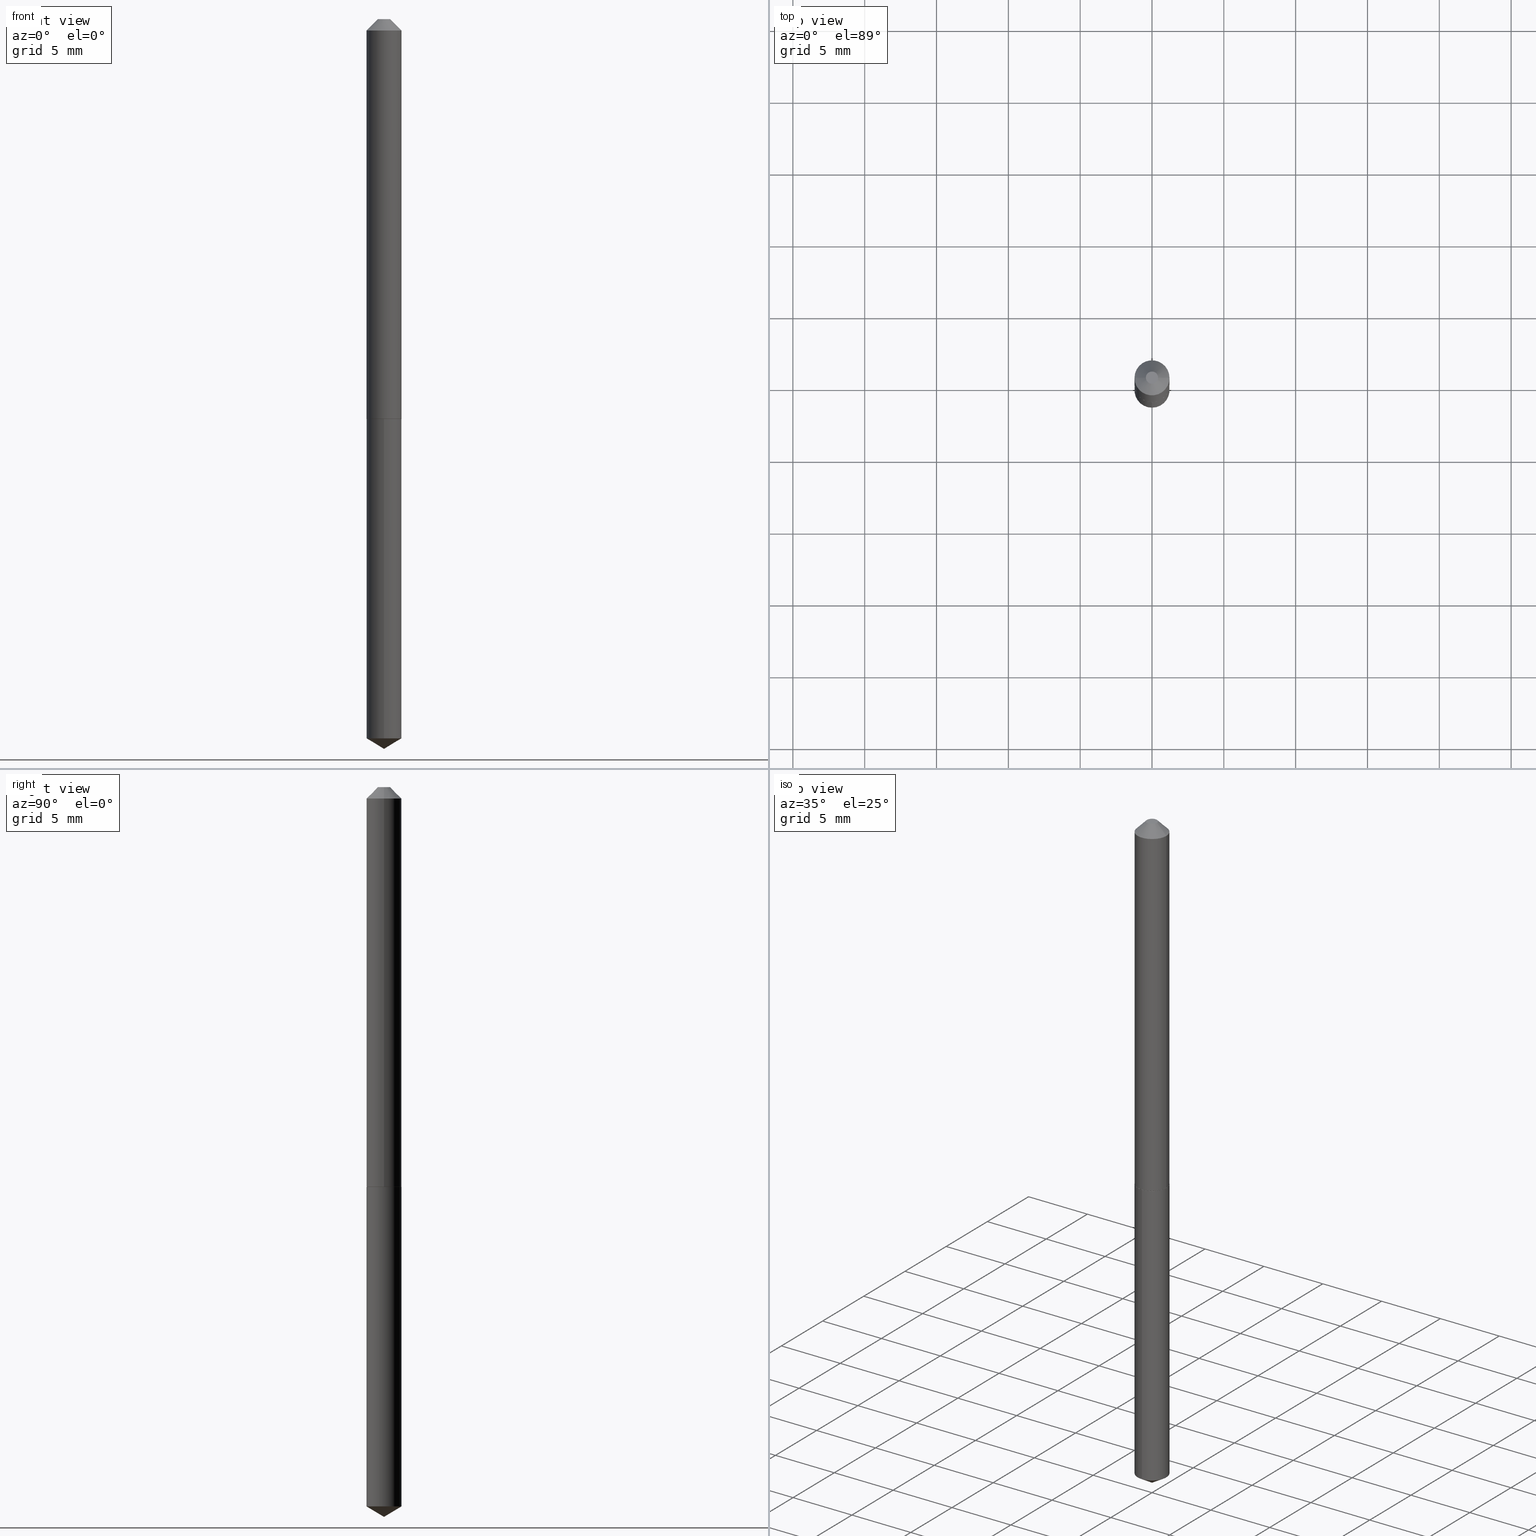
[diagram: canonical four-view strip — front | top / right | iso, engineering-drawing reading convention]
A machine part, canonical four-view strip (front | top / right | iso — engineering-drawing reading convention). The complete STEP part file that produces these views, byte-faithful:
ISO-10303-21;
HEADER;
FILE_DESCRIPTION (( 'STEP AP203' ),
    '1' );
FILE_NAME ('57121.STEP',
    '2024-04-22T22:29:08',
    ( '' ),
    ( '' ),
    'SwSTEP 2.0',
    'SolidWorks 2023',
    '' );
FILE_SCHEMA (( 'CONFIG_CONTROL_DESIGN' ));
ENDSEC;

DATA;
#1 = VERTEX_POINT ( 'NONE', #221 ) ;
#2 = CC_DESIGN_PERSON_AND_ORGANIZATION_ASSIGNMENT ( #284, #78, ( #143 ) ) ;
#3 = FACE_OUTER_BOUND ( 'NONE', #283, .T. ) ;
#4 = CARTESIAN_POINT ( 'NONE',  ( 3.410605131648961675E-16, 0.04799999999999310374, -1.971158690286678006 ) ) ;
#5 = ORIENTED_EDGE ( 'NONE', *, *, #293, .T. ) ;
#6 = CIRCLE ( 'NONE', #374, 0.04800000000000000100 ) ;
#7 = VERTEX_POINT ( 'NONE', #349 ) ;
#8 = DIRECTION ( 'NONE',  ( -2.445468806185136597E-29, 3.491481338843145583E-15, 1.000000000000000000 ) ) ;
#9 = ORIENTED_EDGE ( 'NONE', *, *, #87, .T. ) ;
#10 = DIRECTION ( 'NONE',  ( -2.445468806185136877E-29, 3.491481338843145188E-15, 1.000000000000000000 ) ) ;
#11 = ORGANIZATION ( 'UNSPECIFIED', 'UNSPECIFIED', '' ) ;
#12 = CALENDAR_DATE ( 2024, 22, 4 ) ;
#13 = SECURITY_CLASSIFICATION_LEVEL ( 'unclassified' ) ;
#14 = CC_DESIGN_PERSON_AND_ORGANIZATION_ASSIGNMENT ( #289, #72, ( #156 ) ) ;
#15 = VECTOR ( 'NONE', #197, 39.37007874015748143 ) ;
#16 = ORIENTED_EDGE ( 'NONE', *, *, #320, .F. ) ;
#17 = CC_DESIGN_PERSON_AND_ORGANIZATION_ASSIGNMENT ( #39, #288, ( #316 ) ) ;
#18 = ORIENTED_EDGE ( 'NONE', *, *, #344, .T. ) ;
#19 = FACE_OUTER_BOUND ( 'NONE', #121, .T. ) ;
#20 = DIRECTION ( 'NONE',  ( -2.445468806185136597E-29, 3.491481338843145583E-15, 1.000000000000000000 ) ) ;
#21 = DIRECTION ( 'NONE',  ( 1.000000000000000000, -6.982962677686265922E-15, 4.876176775795935793E-29 ) ) ;
#22 = ORIENTED_EDGE ( 'NONE', *, *, #205, .F. ) ;
#23 = ADVANCED_BREP_SHAPE_REPRESENTATION ( '57121', ( #80, #71, #234 ), #351 ) ;
#24 = CARTESIAN_POINT ( 'NONE',  ( 7.642090019328601786E-31, -1.091087918388490144E-16, -0.03125000000000020123 ) ) ;
#25 = ADVANCED_FACE ( 'NONE', ( #189 ), #209, .T. ) ;
#26 = CARTESIAN_POINT ( 'NONE',  ( 2.680233811578909638E-29, -3.826663547372087284E-15, -1.096000000000000085 ) ) ;
#27 = ORIENTED_EDGE ( 'NONE', *, *, #276, .T. ) ;
#28 = LINE ( 'NONE', #207, #165 ) ;
#29 = PRODUCT ( '57121', '57121', '', ( #258 ) ) ;
#30 = DIRECTION ( 'NONE',  ( -5.985567269335975989E-15, -0.8571673007021152202, 0.5150380749100490485 ) ) ;
#31 = VERTEX_POINT ( 'NONE', #98 ) ;
#32 = CONICAL_SURFACE ( 'NONE', #33, 0.04800000000000013284, 0.7853981633975080090 ) ;
#33 = AXIS2_PLACEMENT_3D ( 'NONE', #206, #201, #377 ) ;
#34 = EDGE_LOOP ( 'NONE', ( #249, #305 ) ) ;
#35 = DATE_AND_TIME ( #371, #171 ) ;
#36 = VERTEX_POINT ( 'NONE', #160 ) ;
#37 = VECTOR ( 'NONE', #10, 39.37007874015748143 ) ;
#38 = CIRCLE ( 'NONE', #211, 0.04800000000000013284 ) ;
#39 = PERSON_AND_ORGANIZATION ( #100, #11 ) ;
#40 = CC_DESIGN_PERSON_AND_ORGANIZATION_ASSIGNMENT ( #42, #343, ( #29 ) ) ;
#41 = APPROVAL_STATUS ( 'not_yet_approved' ) ;
#42 = PERSON_AND_ORGANIZATION ( #100, #11 ) ;
#43 = ORIENTED_EDGE ( 'NONE', *, *, #320, .T. ) ;
#44 = AXIS2_PLACEMENT_3D ( 'NONE', #173, #355, #353 ) ;
#45 = ORIENTED_EDGE ( 'NONE', *, *, #60, .F. ) ;
#46 = CARTESIAN_POINT ( 'NONE',  ( -0.04800000000000013284, -3.483857293537816599E-15, -1.095499999999999918 ) ) ;
#47 = APPROVAL ( #345, 'UNSPECIFIED' ) ;
#48 = DIRECTION ( 'NONE',  ( -2.445468806185136597E-29, 3.491481338843145583E-15, 1.000000000000000000 ) ) ;
#49 = DIRECTION ( 'NONE',  ( -1.000000000000000000, 6.982962677686265922E-15, -4.876176775795935793E-29 ) ) ;
#50 = CIRCLE ( 'NONE', #240, 0.04800000000000000100 ) ;
#51 = AXIS2_PLACEMENT_3D ( 'NONE', #273, #186, #245 ) ;
#52 = VERTEX_POINT ( 'NONE', #335 ) ;
#53 = EDGE_CURVE ( 'NONE', #357, #7, #161, .T. ) ;
#54 = FACE_OUTER_BOUND ( 'NONE', #313, .T. ) ;
#55 = VERTEX_POINT ( 'NONE', #130 ) ;
#56 = LINE ( 'NONE', #46, #142 ) ;
#57 = DIRECTION ( 'NONE',  ( 0.7071067811865897612, -2.468850131082699217E-15, 0.7071067811865052732 ) ) ;
#58 = AXIS2_PLACEMENT_3D ( 'NONE', #250, #181, #183 ) ;
#59 = DIRECTION ( 'NONE',  ( 6.982962677686265922E-15, 1.000000000000000000, -3.491494047070310150E-15 ) ) ;
#60 = EDGE_CURVE ( 'NONE', #36, #1, #64, .T. ) ;
#61 = ORIENTED_EDGE ( 'NONE', *, *, #364, .F. ) ;
#62 = ORIENTED_EDGE ( 'NONE', *, *, #381, .T. ) ;
#63 = LINE ( 'NONE', #188, #82 ) ;
#64 = CIRCLE ( 'NONE', #267, 0.01674999999999999753 ) ;
#65 = ORIENTED_EDGE ( 'NONE', *, *, #364, .T. ) ;
#66 = AXIS2_PLACEMENT_3D ( 'NONE', #341, #148, #275 ) ;
#67 = LOCAL_TIME ( 18, 29, 8.000000000000000000, #135 ) ;
#68 = VERTEX_POINT ( 'NONE', #337 ) ;
#69 = COORDINATED_UNIVERSAL_TIME_OFFSET ( 5, 0, .BEHIND. ) ;
#70 = CLOSED_SHELL ( 'NONE', ( #388, #332, #145, #280, #354 ) ) ;
#71 = MANIFOLD_SOLID_BREP ( 'Body-Move/Copy2[2]', #180 ) ;
#72 = PERSON_AND_ORGANIZATION_ROLE ( 'creator' ) ;
#73 = CC_DESIGN_APPROVAL ( #198, ( #143 ) ) ;
#74 = EDGE_CURVE ( 'NONE', #1, #36, #95, .T. ) ;
#75 = APPROVAL_DATE_TIME ( #194, #195 ) ;
#76 = CARTESIAN_POINT ( 'NONE',  ( -3.294319100500249055E-48, 4.703414590486657037E-34, 1.347111479062084438E-19 ) ) ;
#77 = DIMENSIONAL_EXPONENTS ( 1.000000000000000000, 0.000000000000000000, 0.000000000000000000, 0.000000000000000000, 0.000000000000000000, 0.000000000000000000, 0.000000000000000000 ) ;
#78 = PERSON_AND_ORGANIZATION_ROLE ( 'classification_officer' ) ;
#79 = CARTESIAN_POINT ( 'NONE',  ( 7.642090019328601786E-31, -1.091087918388490144E-16, -0.03125000000000020123 ) ) ;
#80 = MANIFOLD_SOLID_BREP ( 'Body-Move/Copy2[1]', #70 ) ;
#81 = CONICAL_SURFACE ( 'NONE', #176, 0.04800000000000000794, 0.7853981633974452814 ) ;
#82 = VECTOR ( 'NONE', #30, 39.37007874015748854 ) ;
#83 = CARTESIAN_POINT ( 'NONE',  ( 2.679011077175817397E-29, -3.824917806702665780E-15, -1.095499999999999918 ) ) ;
#84 = UNCERTAINTY_MEASURE_WITH_UNIT (LENGTH_MEASURE( 1.000000000000000082E-05 ), #213, 'distance_accuracy_value', 'NONE');
#85 = DIRECTION ( 'NONE',  ( 2.445468806185136597E-29, -3.491481338843145583E-15, -1.000000000000000000 ) ) ;
#86 = LINE ( 'NONE', #302, #369 ) ;
#87 = EDGE_CURVE ( 'NONE', #36, #333, #342, .T. ) ;
#88 = CARTESIAN_POINT ( 'NONE',  ( 0.000000000000000000, 0.000000000000000000, 0.000000000000000000 ) ) ;
#89 = ORIENTED_EDGE ( 'NONE', *, *, #115, .F. ) ;
#90 = DIRECTION ( 'NONE',  ( 2.438088387897960049E-29, -3.491481338843145188E-15, -1.000000000000000000 ) ) ;
#91 = ORIENTED_EDGE ( 'NONE', *, *, #169, .F. ) ;
#92 = DIRECTION ( 'NONE',  ( -2.445468806185136877E-29, 3.491481338843145188E-15, 1.000000000000000000 ) ) ;
#93 = CARTESIAN_POINT ( 'NONE',  ( 2.680233811578909638E-29, -3.826663547372087284E-15, -1.096000000000000085 ) ) ;
#94 = EDGE_CURVE ( 'NONE', #360, #139, #131, .T. ) ;
#95 = CIRCLE ( 'NONE', #136, 0.01674999999999999753 ) ;
#96 = ORIENTED_EDGE ( 'NONE', *, *, #381, .F. ) ;
#97 = LENGTH_MEASURE_WITH_UNIT ( LENGTH_MEASURE( 0.02539999999999999897 ), #210 );
#98 = CARTESIAN_POINT ( 'NONE',  ( -0.04750000000000004219, -3.486506520711928195E-15, -1.096000000000000085 ) ) ;
#99 = CYLINDRICAL_SURFACE ( 'NONE', #66, 0.04800000000000000100 ) ;
#100 = PERSON ( 'UNSPECIFIED', 'UNSPECIFIED', 'UNSPECIFIED', ('UNSPECIFIED'), ('UNSPECIFIED'), ('UNSPECIFIED') ) ;
#101 = ORIENTED_EDGE ( 'NONE', *, *, #248, .T. ) ;
#102 = PLANE ( 'NONE',  #356 ) ;
#103 = DIRECTION ( 'NONE',  ( -1.000000000000000000, 6.982962677686266711E-15, 0.000000000000000000 ) ) ;
#104 = AXIS2_PLACEMENT_3D ( 'NONE', #88, #266, #113 ) ;
#105 = ORIENTED_EDGE ( 'NONE', *, *, #94, .T. ) ;
#106 = APPLICATION_PROTOCOL_DEFINITION ( 'international standard', 'config_control_design', 1994, #301 ) ;
#107 = EDGE_CURVE ( 'NONE', #360, #52, #50, .T. ) ;
#108 = APPROVAL_DATE_TIME ( #228, #198 ) ;
#109 = PERSON_AND_ORGANIZATION_ROLE ( 'creator' ) ;
#110 = ORIENTED_EDGE ( 'NONE', *, *, #276, .F. ) ;
#111 = CARTESIAN_POINT ( 'NONE',  ( 2.679011077175817397E-29, -3.824917806702665780E-15, -1.095499999999999918 ) ) ;
#112 = AXIS2_PLACEMENT_3D ( 'NONE', #120, #336, #244 ) ;
#113 = DIRECTION ( 'NONE',  ( 1.000000000000000000, -6.982962677686265922E-15, 4.876176775795935793E-29 ) ) ;
#114 = CARTESIAN_POINT ( 'NONE',  ( 3.410605131648963647E-16, 0.04799999999999617073, -1.096000000000000085 ) ) ;
#115 = EDGE_CURVE ( 'NONE', #7, #333, #118, .T. ) ;
#116 = FACE_OUTER_BOUND ( 'NONE', #34, .T. ) ;
#117 = ORIENTED_EDGE ( 'NONE', *, *, #94, .F. ) ;
#118 = CIRCLE ( 'NONE', #338, 0.04800000000000000794 ) ;
#119 = CARTESIAN_POINT ( 'NONE',  ( 0.04750000000000004219, -4.158354274562185584E-15, -1.096000000000000085 ) ) ;
#120 = CARTESIAN_POINT ( 'NONE',  ( 7.642090019328601786E-31, -1.091087918388490144E-16, -0.03125000000000020123 ) ) ;
#121 = EDGE_LOOP ( 'NONE', ( #125, #65, #89, #184 ) ) ;
#122 = DIRECTION ( 'NONE',  ( 1.000000000000000000, -6.982962677686265133E-15, 0.000000000000000000 ) ) ;
#123 = DIRECTION ( 'NONE',  ( -6.982962677686265922E-15, -1.000000000000000000, 2.845674993400273939E-15 ) ) ;
#124 = AXIS2_PLACEMENT_3D ( 'NONE', #236, #8, #128 ) ;
#125 = ORIENTED_EDGE ( 'NONE', *, *, #205, .T. ) ;
#126 = FACE_OUTER_BOUND ( 'NONE', #232, .T. ) ;
#127 = ORIENTED_EDGE ( 'NONE', *, *, #248, .F. ) ;
#128 = DIRECTION ( 'NONE',  ( 1.000000000000000000, -6.982962677686265133E-15, 0.000000000000000000 ) ) ;
#129 = PRODUCT_RELATED_PRODUCT_CATEGORY ( 'detail', '', ( #29 ) ) ;
#130 = CARTESIAN_POINT ( 'NONE',  ( 4.890919864155075049E-29, -6.982988094140620299E-15, -2.000000000000000000 ) ) ;
#131 = LINE ( 'NONE', #170, #175 ) ;
#132 = PRODUCT_DEFINITION_SHAPE ( 'NONE', 'NONE',  #156 ) ;
#133 = EDGE_CURVE ( 'NONE', #31, #187, #56, .T. ) ;
#134 = DATE_TIME_ROLE ( 'creation_date' ) ;
#135 = COORDINATED_UNIVERSAL_TIME_OFFSET ( 5, 0, .BEHIND. ) ;
#136 = AXIS2_PLACEMENT_3D ( 'NONE', #76, #282, #321 ) ;
#137 = CIRCLE ( 'NONE', #112, 0.04800000000000000794 ) ;
#138 = APPROVAL_ROLE ( '' ) ;
#139 = VERTEX_POINT ( 'NONE', #114 ) ;
#140 = DIRECTION ( 'NONE',  ( 0.7071067811865453523, -7.319954787623248157E-15, -0.7071067811865496822 ) ) ;
#141 = DIRECTION ( 'NONE',  ( -2.445459932077537805E-29, 3.491494047070310150E-15, 1.000000000000000000 ) ) ;
#142 = VECTOR ( 'NONE', #179, 39.37007874015748143 ) ;
#143 = SECURITY_CLASSIFICATION ( '', '', #13 ) ;
#144 = DIRECTION ( 'NONE',  ( -2.445468806185136597E-29, 3.491481338843145583E-15, 1.000000000000000000 ) ) ;
#145 = ADVANCED_FACE ( 'NONE', ( #237 ), #219, .T. ) ;
#146 = DIRECTION ( 'NONE',  ( -2.445468806185136597E-29, 3.491481338843145583E-15, 1.000000000000000000 ) ) ;
#147 = PLANE ( 'NONE',  #386 ) ;
#148 = DIRECTION ( 'NONE',  ( -2.445459932077537525E-29, 3.491494047070310150E-15, 1.000000000000000000 ) ) ;
#149 = VECTOR ( 'NONE', #92, 39.37007874015748143 ) ;
#150 = ADVANCED_FACE ( 'NONE', ( #178 ), #147, .F. ) ;
#151 = ORIENTED_EDGE ( 'NONE', *, *, #235, .F. ) ;
#152 = FACE_OUTER_BOUND ( 'NONE', #384, .T. ) ;
#153 = ORIENTED_EDGE ( 'NONE', *, *, #344, .F. ) ;
#154 = FACE_OUTER_BOUND ( 'NONE', #251, .T. ) ;
#155 = VERTEX_POINT ( 'NONE', #119 ) ;
#156 = PRODUCT_DEFINITION ( 'UNKNOWN', '', #316, #378 ) ;
#157 =( NAMED_UNIT ( * ) SI_UNIT ( $, .STERADIAN. ) SOLID_ANGLE_UNIT ( ) );
#158 = AXIS2_PLACEMENT_3D ( 'NONE', #79, #229, #103 ) ;
#159 = APPROVAL_PERSON_ORGANIZATION ( #225, #195, #138 ) ;
#160 = CARTESIAN_POINT ( 'NONE',  ( -0.01675000000000000100, 1.715190207706684202E-16, 1.347111479051999787E-19 ) ) ;
#161 = LINE ( 'NONE', #347, #37 ) ;
#162 = CALENDAR_DATE ( 2024, 22, 4 ) ;
#163 = EDGE_LOOP ( 'NONE', ( #330, #290, #256, #365 ) ) ;
#164 = COORDINATED_UNIVERSAL_TIME_OFFSET ( 5, 0, .BEHIND. ) ;
#165 = VECTOR ( 'NONE', #57, 39.37007874015748143 ) ;
#166 = ADVANCED_FACE ( 'NONE', ( #204 ), #81, .T. ) ;
#167 = DIRECTION ( 'NONE',  ( 1.000000000000000000, 0.000000000000000000, 0.000000000000000000 ) ) ;
#168 = CALENDAR_DATE ( 2024, 22, 4 ) ;
#169 = EDGE_CURVE ( 'NONE', #52, #68, #86, .T. ) ;
#170 = CARTESIAN_POINT ( 'NONE',  ( 3.410605131648748190E-16, 0.04799999999999617073, -1.096000000000000085 ) ) ;
#171 = LOCAL_TIME ( 18, 29, 8.000000000000000000, #373 ) ;
#172 = ORIENTED_EDGE ( 'NONE', *, *, #304, .T. ) ;
#173 = CARTESIAN_POINT ( 'NONE',  ( -9.138702049161582157E-28, 1.304774213880255776E-13, 37.37007874015748143 ) ) ;
#174 = DIRECTION ( 'NONE',  ( 1.000000000000000000, -6.982962677686266711E-15, 0.000000000000000000 ) ) ;
#175 = VECTOR ( 'NONE', #319, 39.37007874015748143 ) ;
#176 = AXIS2_PLACEMENT_3D ( 'NONE', #385, #85, #328 ) ;
#177 = LINE ( 'NONE', #294, #193 ) ;
#178 = FACE_OUTER_BOUND ( 'NONE', #253, .T. ) ;
#179 = DIRECTION ( 'NONE',  ( -0.7071067811865897612, 7.493145998870507199E-15, 0.7071067811865052732 ) ) ;
#180 = CLOSED_SHELL ( 'NONE', ( #166, #254, #214, #150, #226, #191, #25, #222 ) ) ;
#181 = DIRECTION ( 'NONE',  ( -2.445459932077537525E-29, 3.491494047070310150E-15, 1.000000000000000000 ) ) ;
#182 = CONICAL_SURFACE ( 'NONE', #291, 65.52281426576982426, 1.029744258676663859 ) ;
#183 = DIRECTION ( 'NONE',  ( -6.982962677686265922E-15, -1.000000000000000000, 2.845674993400273939E-15 ) ) ;
#184 = ORIENTED_EDGE ( 'NONE', *, *, #53, .F. ) ;
#185 = EDGE_CURVE ( 'NONE', #1, #7, #350, .T. ) ;
#186 = DIRECTION ( 'NONE',  ( -2.445459932077537525E-29, 3.491494047070310150E-15, 1.000000000000000000 ) ) ;
#187 = VERTEX_POINT ( 'NONE', #325 ) ;
#188 = CARTESIAN_POINT ( 'NONE',  ( 4.890919864155074489E-29, -6.982988094140620299E-15, -2.000000000000000000 ) ) ;
#189 = FACE_OUTER_BOUND ( 'NONE', #300, .T. ) ;
#190 = CARTESIAN_POINT ( 'NONE',  ( -0.04800000000000000794, 2.260734166900918612E-16, -0.03125000000000020123 ) ) ;
#191 = ADVANCED_FACE ( 'NONE', ( #54 ), #295, .T. ) ;
#192 = CALENDAR_DATE ( 2024, 22, 4 ) ;
#193 = VECTOR ( 'NONE', #383, 39.37007874015748143 ) ;
#194 = DATE_AND_TIME ( #168, #387 ) ;
#195 = APPROVAL ( #41, 'UNSPECIFIED' ) ;
#196 = SHAPE_DEFINITION_REPRESENTATION ( #132, #23 ) ;
#197 = DIRECTION ( 'NONE',  ( -0.7071067811865453523, 2.468850131082234184E-15, -0.7071067811865496822 ) ) ;
#198 = APPROVAL ( #286, 'UNSPECIFIED' ) ;
#199 = DIRECTION ( 'NONE',  ( -2.445468806185136597E-29, 3.491481338843145583E-15, 1.000000000000000000 ) ) ;
#200 = AXIS2_PLACEMENT_3D ( 'NONE', #93, #306, #122 ) ;
#201 = DIRECTION ( 'NONE',  ( -2.445468806185136597E-29, 3.491481338843145583E-15, 1.000000000000000000 ) ) ;
#202 = CARTESIAN_POINT ( 'NONE',  ( 0.000000000000000000, 0.000000000000000000, 0.000000000000000000 ) ) ;
#203 = FACE_OUTER_BOUND ( 'NONE', #274, .T. ) ;
#204 = FACE_OUTER_BOUND ( 'NONE', #163, .T. ) ;
#205 = EDGE_CURVE ( 'NONE', #357, #187, #38, .T. ) ;
#206 = CARTESIAN_POINT ( 'NONE',  ( 2.679011077175817397E-29, -3.824917806702665780E-15, -1.095499999999999918 ) ) ;
#207 = CARTESIAN_POINT ( 'NONE',  ( 0.04800000000000013284, -4.160100015231607087E-15, -1.095499999999999918 ) ) ;
#208 = EDGE_LOOP ( 'NONE', ( #127, #5, #263 ) ) ;
#209 = CONICAL_SURFACE ( 'NONE', #158, 0.04800000000000000794, 0.7853981633974452814 ) ;
#210 =( LENGTH_UNIT ( ) NAMED_UNIT ( * ) SI_UNIT ( $, .METRE. ) );
#211 = AXIS2_PLACEMENT_3D ( 'NONE', #299, #146, #269 ) ;
#212 = EDGE_LOOP ( 'NONE', ( #298, #376, #62, #151 ) ) ;
#213 =( CONVERSION_BASED_UNIT ( 'INCH', #97 ) LENGTH_UNIT ( ) NAMED_UNIT ( #77 ) );
#214 = ADVANCED_FACE ( 'NONE', ( #203 ), #362, .T. ) ;
#215 = ORIENTED_EDGE ( 'NONE', *, *, #107, .T. ) ;
#216 = CARTESIAN_POINT ( 'NONE',  ( -0.04800000000000000794, -1.625952786105907668E-15, -0.03125000000000020123 ) ) ;
#217 = DIRECTION ( 'NONE',  ( 1.000000000000000000, -6.982962677686266711E-15, 4.876219677916620331E-29 ) ) ;
#218 = CARTESIAN_POINT ( 'NONE',  ( 0.04800000000000013284, -4.160100015231607087E-15, -1.095499999999999918 ) ) ;
#219 = CONICAL_SURFACE ( 'NONE', #44, 65.52281426576982426, 1.029744258676663859 ) ;
#220 = VECTOR ( 'NONE', #140, 39.37007874015748143 ) ;
#221 = CARTESIAN_POINT ( 'NONE',  ( 0.01675000000000000100, -2.766630185972779012E-16, 1.347111479075840151E-19 ) ) ;
#222 = ADVANCED_FACE ( 'NONE', ( #116 ), #243, .F. ) ;
#223 = CARTESIAN_POINT ( 'NONE',  ( 0.000000000000000000, 0.000000000000000000, 0.000000000000000000 ) ) ;
#224 = APPROVAL_DATE_TIME ( #315, #47 ) ;
#225 = PERSON_AND_ORGANIZATION ( #100, #11 ) ;
#226 = ADVANCED_FACE ( 'NONE', ( #270 ), #32, .T. ) ;
#227 = CIRCLE ( 'NONE', #51, 0.04800000000000000100 ) ;
#228 = DATE_AND_TIME ( #162, #242 ) ;
#229 = DIRECTION ( 'NONE',  ( 2.445468806185136597E-29, -3.491481338843145583E-15, -1.000000000000000000 ) ) ;
#230 = CC_DESIGN_PERSON_AND_ORGANIZATION_ASSIGNMENT ( #317, #109, ( #316 ) ) ;
#231 = DATE_AND_TIME ( #12, #67 ) ;
#232 = EDGE_LOOP ( 'NONE', ( #172, #105, #16, #91 ) ) ;
#233 = DIRECTION ( 'NONE',  ( -2.445468806185136597E-29, 3.491481338843145583E-15, 1.000000000000000000 ) ) ;
#234 = AXIS2_PLACEMENT_3D ( 'NONE', #223, #318, #167 ) ;
#235 = EDGE_CURVE ( 'NONE', #187, #357, #247, .T. ) ;
#236 = CARTESIAN_POINT ( 'NONE',  ( 2.680233811578909638E-29, -3.826663547372087284E-15, -1.096000000000000085 ) ) ;
#237 = FACE_OUTER_BOUND ( 'NONE', #208, .T. ) ;
#238 = DIRECTION ( 'NONE',  ( -2.445459932077537525E-29, 3.491494047070310150E-15, 1.000000000000000000 ) ) ;
#239 = ORIENTED_EDGE ( 'NONE', *, *, #53, .T. ) ;
#240 = AXIS2_PLACEMENT_3D ( 'NONE', #382, #238, #329 ) ;
#241 = AXIS2_PLACEMENT_3D ( 'NONE', #202, #144, #21 ) ;
#242 = LOCAL_TIME ( 18, 29, 8.000000000000000000, #348 ) ;
#243 = PLANE ( 'NONE',  #261 ) ;
#244 = DIRECTION ( 'NONE',  ( 1.000000000000000000, -6.982962677686266711E-15, 0.000000000000000000 ) ) ;
#245 = DIRECTION ( 'NONE',  ( -6.982962677686265922E-15, -1.000000000000000000, 5.691349986800547879E-15 ) ) ;
#246 = CARTESIAN_POINT ( 'NONE',  ( 2.680233811578909638E-29, -3.826663547372087284E-15, -1.096000000000000085 ) ) ;
#247 = CIRCLE ( 'NONE', #296, 0.04800000000000013284 ) ;
#248 = EDGE_CURVE ( 'NONE', #55, #360, #177, .T. ) ;
#249 = ORIENTED_EDGE ( 'NONE', *, *, #60, .T. ) ;
#250 = CARTESIAN_POINT ( 'NONE',  ( 2.680233811578909638E-29, -3.826663547372087284E-15, -1.096000000000000085 ) ) ;
#251 = EDGE_LOOP ( 'NONE', ( #43, #27 ) ) ;
#252 = DIRECTION ( 'NONE',  ( -2.445459932077537525E-29, 3.491494047070310150E-15, 1.000000000000000000 ) ) ;
#253 = EDGE_LOOP ( 'NONE', ( #307, #370 ) ) ;
#254 = ADVANCED_FACE ( 'NONE', ( #19 ), #379, .T. ) ;
#255 = AXIS2_PLACEMENT_3D ( 'NONE', #83, #20, #324 ) ;
#256 = ORIENTED_EDGE ( 'NONE', *, *, #115, .T. ) ;
#257 = PERSON_AND_ORGANIZATION ( #100, #11 ) ;
#258 = MECHANICAL_CONTEXT ( 'NONE', #281, 'mechanical' ) ;
#259 = PERSON_AND_ORGANIZATION ( #100, #11 ) ;
#260 = CIRCLE ( 'NONE', #124, 0.04750000000000004219 ) ;
#261 = AXIS2_PLACEMENT_3D ( 'NONE', #358, #90, #49 ) ;
#262 = DATE_TIME_ROLE ( 'classification_date' ) ;
#263 = ORIENTED_EDGE ( 'NONE', *, *, #107, .F. ) ;
#264 = CARTESIAN_POINT ( 'NONE',  ( 2.680233811578909638E-29, -3.826663547372087284E-15, -1.096000000000000085 ) ) ;
#265 = EDGE_CURVE ( 'NONE', #31, #155, #260, .T. ) ;
#266 = DIRECTION ( 'NONE',  ( -2.445468806185136597E-29, 3.491481338843145583E-15, 1.000000000000000000 ) ) ;
#267 = AXIS2_PLACEMENT_3D ( 'NONE', #366, #199, #217 ) ;
#268 = CIRCLE ( 'NONE', #303, 0.04800000000000000100 ) ;
#269 = DIRECTION ( 'NONE',  ( 1.000000000000000000, -6.982962677686262766E-15, 0.000000000000000000 ) ) ;
#270 = FACE_OUTER_BOUND ( 'NONE', #212, .T. ) ;
#271 = CC_DESIGN_DATE_AND_TIME_ASSIGNMENT ( #35, #134, ( #156 ) ) ;
#272 = CARTESIAN_POINT ( 'NONE',  ( 0.04800000000000000794, -4.384126957318825829E-16, -0.03125000000000020123 ) ) ;
#273 = CARTESIAN_POINT ( 'NONE',  ( 4.820399322884435302E-29, -6.882274904749872337E-15, -1.971158690286677784 ) ) ;
#274 = EDGE_LOOP ( 'NONE', ( #314, #326, #22, #96 ) ) ;
#275 = DIRECTION ( 'NONE',  ( -6.982962677686265922E-15, -1.000000000000000000, 2.845674993400273939E-15 ) ) ;
#276 = EDGE_CURVE ( 'NONE', #139, #68, #6, .T. ) ;
#277 = DIRECTION ( 'NONE',  ( -6.982962677686265133E-15, -1.000000000000000000, 3.468864327941520456E-15 ) ) ;
#278 = ORIENTED_EDGE ( 'NONE', *, *, #293, .F. ) ;
#279 = DIRECTION ( 'NONE',  ( -6.982962677686265922E-15, -1.000000000000000000, 2.845674993400273939E-15 ) ) ;
#280 = ADVANCED_FACE ( 'NONE', ( #152 ), #99, .T. ) ;
#281 = APPLICATION_CONTEXT ( 'configuration controlled 3d designs of mechanical parts and assemblies' ) ;
#282 = DIRECTION ( 'NONE',  ( -2.445468806185136597E-29, 3.491481338843145583E-15, 1.000000000000000000 ) ) ;
#283 = EDGE_LOOP ( 'NONE', ( #278, #101, #368 ) ) ;
#284 = PERSON_AND_ORGANIZATION ( #100, #11 ) ;
#285 = CC_DESIGN_APPROVAL ( #47, ( #156 ) ) ;
#286 = APPROVAL_STATUS ( 'not_yet_approved' ) ;
#287 = EDGE_CURVE ( 'NONE', #155, #31, #322, .T. ) ;
#288 = PERSON_AND_ORGANIZATION_ROLE ( 'design_supplier' ) ;
#289 = PERSON_AND_ORGANIZATION ( #100, #11 ) ;
#290 = ORIENTED_EDGE ( 'NONE', *, *, #185, .T. ) ;
#291 = AXIS2_PLACEMENT_3D ( 'NONE', #310, #367, #277 ) ;
#292 = ORIENTED_EDGE ( 'NONE', *, *, #185, .F. ) ;
#293 = EDGE_CURVE ( 'NONE', #55, #52, #63, .T. ) ;
#294 = CARTESIAN_POINT ( 'NONE',  ( 4.890939486770395942E-29, -6.982960237706674981E-15, -2.000000000000000000 ) ) ;
#295 = CYLINDRICAL_SURFACE ( 'NONE', #241, 0.04800000000000007733 ) ;
#296 = AXIS2_PLACEMENT_3D ( 'NONE', #111, #48, #323 ) ;
#297 = DIRECTION ( 'NONE',  ( -2.438088387897960049E-29, 3.491481338843145188E-15, 1.000000000000000000 ) ) ;
#298 = ORIENTED_EDGE ( 'NONE', *, *, #133, .F. ) ;
#299 = CARTESIAN_POINT ( 'NONE',  ( 2.679011077175817397E-29, -3.824917806702665780E-15, -1.095499999999999918 ) ) ;
#300 = EDGE_LOOP ( 'NONE', ( #292, #45, #9, #18 ) ) ;
#301 = APPLICATION_CONTEXT ( 'configuration controlled 3d designs of mechanical parts and assemblies' ) ;
#302 = CARTESIAN_POINT ( 'NONE',  ( -3.351822085289139434E-16, -0.04800000000000382433, -1.095999999999999863 ) ) ;
#303 = AXIS2_PLACEMENT_3D ( 'NONE', #390, #308, #279 ) ;
#304 = EDGE_CURVE ( 'NONE', #52, #360, #227, .T. ) ;
#305 = ORIENTED_EDGE ( 'NONE', *, *, #74, .T. ) ;
#306 = DIRECTION ( 'NONE',  ( -2.445468806185136597E-29, 3.491481338843145583E-15, 1.000000000000000000 ) ) ;
#307 = ORIENTED_EDGE ( 'NONE', *, *, #287, .F. ) ;
#308 = DIRECTION ( 'NONE',  ( -2.445459932077537525E-29, 3.491494047070310150E-15, 1.000000000000000000 ) ) ;
#309 = ORIENTED_EDGE ( 'NONE', *, *, #235, .T. ) ;
#310 = CARTESIAN_POINT ( 'NONE',  ( -9.138702049161582157E-28, 1.304774213880255776E-13, 37.37007874015748143 ) ) ;
#311 = CC_DESIGN_SECURITY_CLASSIFICATION ( #143, ( #316 ) ) ;
#312 = APPROVAL_PERSON_ORGANIZATION ( #259, #198, #375 ) ;
#313 = EDGE_LOOP ( 'NONE', ( #61, #309, #239, #153 ) ) ;
#314 = ORIENTED_EDGE ( 'NONE', *, *, #287, .T. ) ;
#315 = DATE_AND_TIME ( #192, #340 ) ;
#316 = PRODUCT_DEFINITION_FORMATION_WITH_SPECIFIED_SOURCE ( 'ANY', '', #29, .NOT_KNOWN. ) ;
#317 = PERSON_AND_ORGANIZATION ( #100, #11 ) ;
#318 = DIRECTION ( 'NONE',  ( 0.000000000000000000, 0.000000000000000000, 1.000000000000000000 ) ) ;
#319 = DIRECTION ( 'NONE',  ( -2.445459932077537805E-29, 3.491494047070310150E-15, 1.000000000000000000 ) ) ;
#320 = EDGE_CURVE ( 'NONE', #68, #139, #268, .T. ) ;
#321 = DIRECTION ( 'NONE',  ( 1.000000000000000000, -6.982962677686266711E-15, 4.876219677916620331E-29 ) ) ;
#322 = CIRCLE ( 'NONE', #200, 0.04750000000000004219 ) ;
#323 = DIRECTION ( 'NONE',  ( 1.000000000000000000, -6.982962677686262766E-15, 0.000000000000000000 ) ) ;
#324 = DIRECTION ( 'NONE',  ( 1.000000000000000000, -6.982962677686262766E-15, 0.000000000000000000 ) ) ;
#325 = CARTESIAN_POINT ( 'NONE',  ( -0.04800000000000013284, -3.483857293537816599E-15, -1.095499999999999918 ) ) ;
#326 = ORIENTED_EDGE ( 'NONE', *, *, #133, .T. ) ;
#327 = APPROVAL_PERSON_ORGANIZATION ( #257, #47, #372 ) ;
#328 = DIRECTION ( 'NONE',  ( -1.000000000000000000, 6.982962677686266711E-15, 0.000000000000000000 ) ) ;
#329 = DIRECTION ( 'NONE',  ( -6.982962677686265922E-15, -1.000000000000000000, 5.691349986800547879E-15 ) ) ;
#330 = ORIENTED_EDGE ( 'NONE', *, *, #74, .F. ) ;
#331 = LINE ( 'NONE', #359, #149 ) ;
#332 = ADVANCED_FACE ( 'NONE', ( #3 ), #182, .T. ) ;
#333 = VERTEX_POINT ( 'NONE', #216 ) ;
#334 =( NAMED_UNIT ( * ) PLANE_ANGLE_UNIT ( ) SI_UNIT ( $, .RADIAN. ) );
#335 = CARTESIAN_POINT ( 'NONE',  ( -3.351822085288923976E-16, -0.04800000000000687050, -1.971158690286677340 ) ) ;
#336 = DIRECTION ( 'NONE',  ( -2.445468806185136597E-29, 3.491481338843145583E-15, 1.000000000000000000 ) ) ;
#337 = CARTESIAN_POINT ( 'NONE',  ( -3.351822085289139434E-16, -0.04800000000000382433, -1.095999999999999863 ) ) ;
#338 = AXIS2_PLACEMENT_3D ( 'NONE', #24, #233, #174 ) ;
#339 = CC_DESIGN_DATE_AND_TIME_ASSIGNMENT ( #231, #262, ( #143 ) ) ;
#340 = LOCAL_TIME ( 18, 29, 8.000000000000000000, #69 ) ;
#341 = CARTESIAN_POINT ( 'NONE',  ( 2.680233811578909638E-29, -3.826663547372087284E-15, -1.096000000000000085 ) ) ;
#342 = LINE ( 'NONE', #190, #15 ) ;
#343 = PERSON_AND_ORGANIZATION_ROLE ( 'design_owner' ) ;
#344 = EDGE_CURVE ( 'NONE', #333, #7, #137, .T. ) ;
#345 = APPROVAL_STATUS ( 'not_yet_approved' ) ;
#346 = APPLICATION_PROTOCOL_DEFINITION ( 'international standard', 'config_control_design', 1994, #281 ) ;
#347 = CARTESIAN_POINT ( 'NONE',  ( 0.04800000000000007733, -3.351822085289413070E-16, 2.340564852382052838E-30 ) ) ;
#348 = COORDINATED_UNIVERSAL_TIME_OFFSET ( 5, 0, .BEHIND. ) ;
#349 = CARTESIAN_POINT ( 'NONE',  ( 0.04800000000000000794, -4.442910003677899146E-16, -0.03125000000000020123 ) ) ;
#350 = LINE ( 'NONE', #272, #220 ) ;
#351 =( GEOMETRIC_REPRESENTATION_CONTEXT ( 3 ) GLOBAL_UNCERTAINTY_ASSIGNED_CONTEXT ( ( #84 ) ) GLOBAL_UNIT_ASSIGNED_CONTEXT ( ( #213, #334, #157 ) ) REPRESENTATION_CONTEXT ( 'NONE', 'WORKASPACE' ) );
#352 = DIRECTION ( 'NONE',  ( 1.000000000000000000, -6.982962677686265922E-15, 4.876176775795935793E-29 ) ) ;
#353 = DIRECTION ( 'NONE',  ( -6.982962677686265133E-15, -1.000000000000000000, 3.468864327941520456E-15 ) ) ;
#354 = ADVANCED_FACE ( 'NONE', ( #154 ), #102, .F. ) ;
#355 = DIRECTION ( 'NONE',  ( -2.445459932077537525E-29, 3.491494047070310150E-15, 1.000000000000000000 ) ) ;
#356 = AXIS2_PLACEMENT_3D ( 'NONE', #246, #361, #59 ) ;
#357 = VERTEX_POINT ( 'NONE', #218 ) ;
#358 = CARTESIAN_POINT ( 'NONE',  ( -1.647159550250124528E-48, 2.351707295243328519E-34, 6.735557395310422188E-20 ) ) ;
#359 = CARTESIAN_POINT ( 'NONE',  ( -0.04800000000000007733, 3.410605131648486387E-16, -2.361088843322358304E-30 ) ) ;
#360 = VERTEX_POINT ( 'NONE', #4 ) ;
#361 = DIRECTION ( 'NONE',  ( 2.445459932077537244E-29, -3.491494047070310150E-15, -1.000000000000000000 ) ) ;
#362 = CONICAL_SURFACE ( 'NONE', #255, 0.04800000000000013284, 0.7853981633975080090 ) ;
#363 = CYLINDRICAL_SURFACE ( 'NONE', #58, 0.04800000000000000100 ) ;
#364 = EDGE_CURVE ( 'NONE', #187, #333, #331, .T. ) ;
#365 = ORIENTED_EDGE ( 'NONE', *, *, #87, .F. ) ;
#366 = CARTESIAN_POINT ( 'NONE',  ( -3.294319100500249055E-48, 4.703414590486657037E-34, 1.347111479062084438E-19 ) ) ;
#367 = DIRECTION ( 'NONE',  ( -2.445459932077537525E-29, 3.491494047070310150E-15, 1.000000000000000000 ) ) ;
#368 = ORIENTED_EDGE ( 'NONE', *, *, #304, .F. ) ;
#369 = VECTOR ( 'NONE', #141, 39.37007874015748143 ) ;
#370 = ORIENTED_EDGE ( 'NONE', *, *, #265, .F. ) ;
#371 = CALENDAR_DATE ( 2024, 22, 4 ) ;
#372 = APPROVAL_ROLE ( '' ) ;
#373 = COORDINATED_UNIVERSAL_TIME_OFFSET ( 5, 0, .BEHIND. ) ;
#374 = AXIS2_PLACEMENT_3D ( 'NONE', #26, #252, #123 ) ;
#375 = APPROVAL_ROLE ( '' ) ;
#376 = ORIENTED_EDGE ( 'NONE', *, *, #265, .T. ) ;
#377 = DIRECTION ( 'NONE',  ( 1.000000000000000000, -6.982962677686262766E-15, 0.000000000000000000 ) ) ;
#378 = DESIGN_CONTEXT ( 'detailed design', #301, 'design' ) ;
#379 = CYLINDRICAL_SURFACE ( 'NONE', #104, 0.04800000000000007733 ) ;
#380 = CC_DESIGN_APPROVAL ( #195, ( #316 ) ) ;
#381 = EDGE_CURVE ( 'NONE', #155, #357, #28, .T. ) ;
#382 = CARTESIAN_POINT ( 'NONE',  ( 4.820399322884435302E-29, -6.882274904749872337E-15, -1.971158690286677784 ) ) ;
#383 = DIRECTION ( 'NONE',  ( 6.090539988449813934E-15, 0.8571673007021188839, 0.5150380749100431643 ) ) ;
#384 = EDGE_LOOP ( 'NONE', ( #117, #215, #389, #110 ) ) ;
#385 = CARTESIAN_POINT ( 'NONE',  ( 7.642090019328601786E-31, -1.091087918388490144E-16, -0.03125000000000020123 ) ) ;
#386 = AXIS2_PLACEMENT_3D ( 'NONE', #264, #297, #352 ) ;
#387 = LOCAL_TIME ( 18, 29, 8.000000000000000000, #164 ) ;
#388 = ADVANCED_FACE ( 'NONE', ( #126 ), #363, .T. ) ;
#389 = ORIENTED_EDGE ( 'NONE', *, *, #169, .T. ) ;
#390 = CARTESIAN_POINT ( 'NONE',  ( 2.680233811578909638E-29, -3.826663547372087284E-15, -1.096000000000000085 ) ) ;
ENDSEC;
END-ISO-10303-21;
